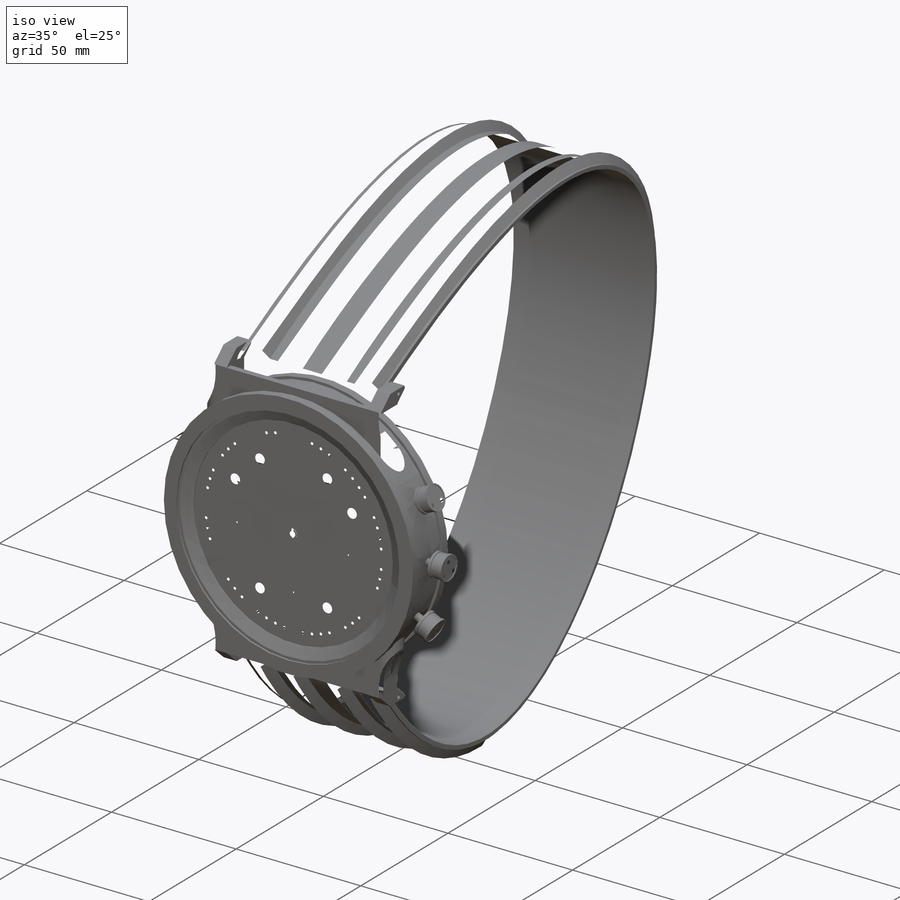
[diagram: iso view]
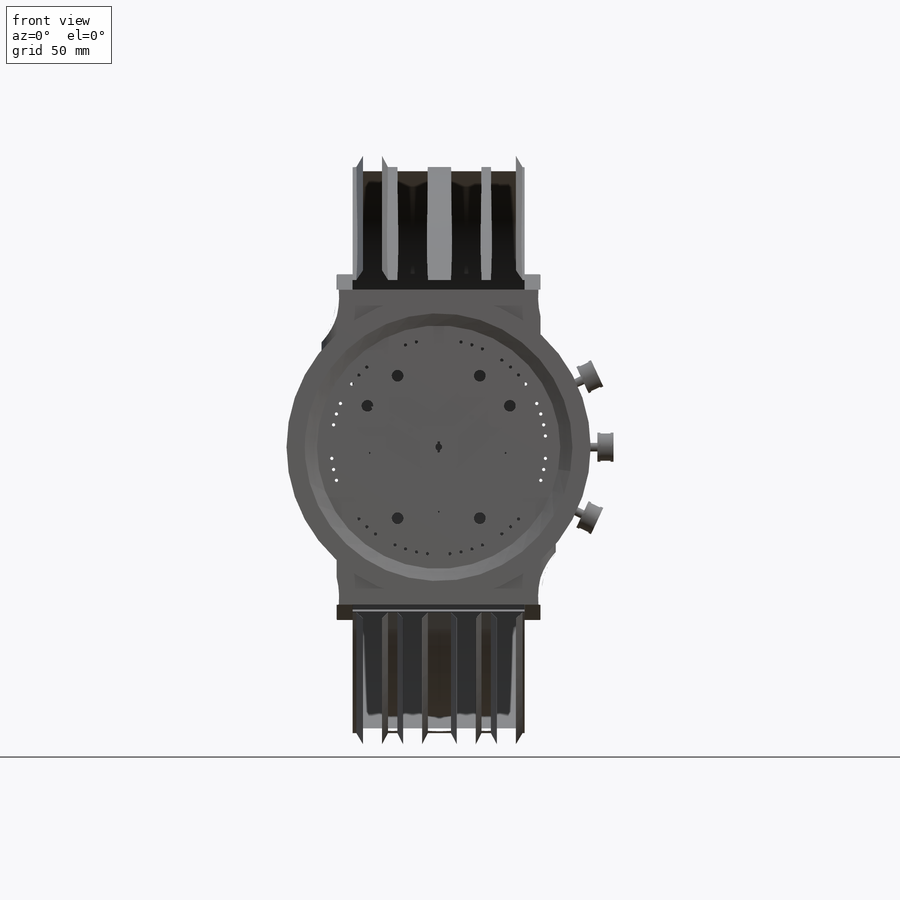
[diagram: front view]
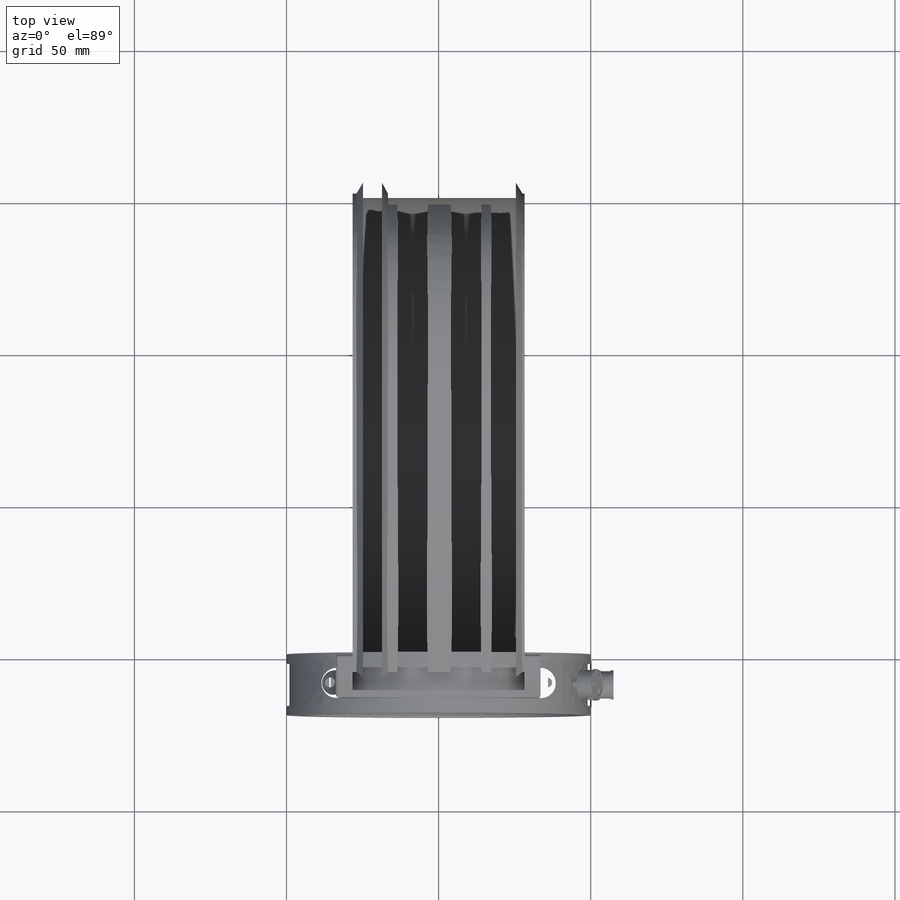
[diagram: top view]
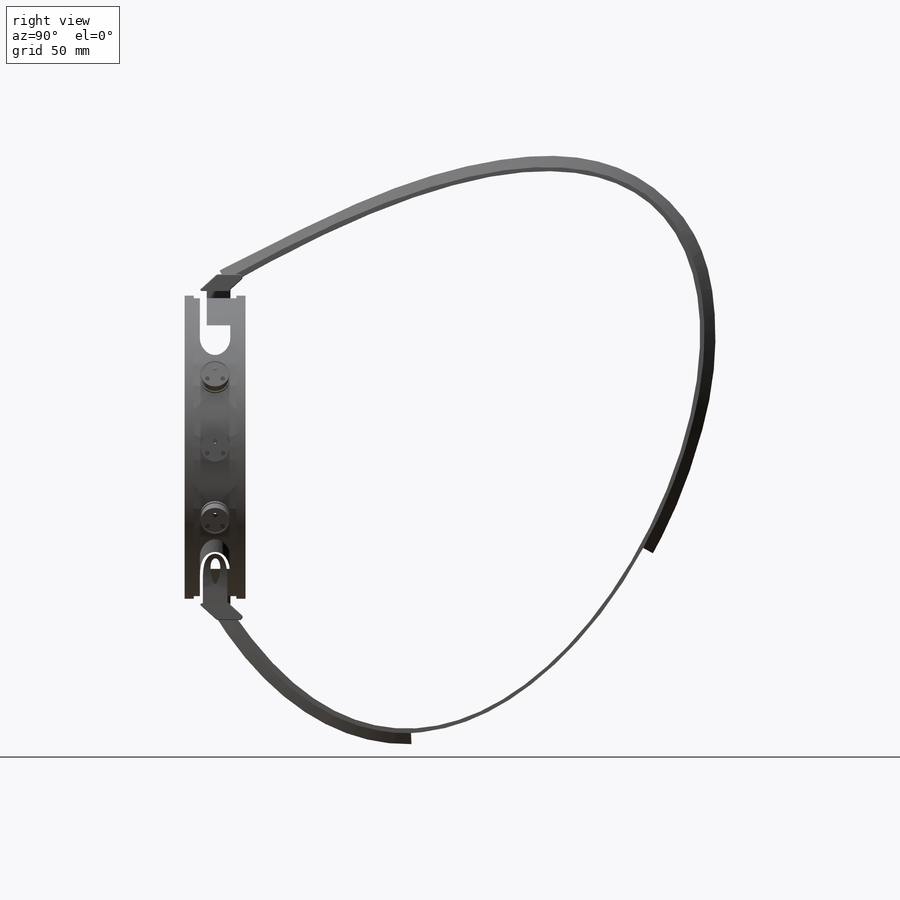
[diagram: right view]
SOLIDWORKS PART (.sldprt)
format: sldprt  version: not decoded by parser v0  size: 4,101,632 bytes
history: native  units: mm
features: sketch x65, extrude x22, cut_extrude x18, curve x15, plane x5, mirror x4, fillet x4, pattern_circular x2, sweep x2, material x1, dome x1 (+11 scaffold rows collapsed)
feature tree (150):
  scaffold x11  (default folders/planes/origin — collapsed)
  material  "Material <not specified>"
  sketch  "Sketch1"  dims[D1=~46.962406mm]
  extrude  "Boss-Extrude1"  Depth=20mm
  plane  "Plane1"  Offset=10mm
  sketch  "Sketch2"  dims[D1=48.0mm]
  cut_extrude  "Cut-Extrude2"  Depth=7mm
  sketch  "Sketch3"  dims[D1=40.0mm]
  cut_extrude  "Cut-Extrude3"  Depth=0.7mm
  sketch  "Sketch4"  dims[D1=~43.65921mm]
  plane  "Plane2"  Offset=2mm
  sketch  "Sketch5"  dims[D1=~39.780601mm]
  sketch  "Sketch6"
  cut_extrude  "Cut-Extrude4"  Depth=0.3mm
  sketch  "Sketch7"
  plane  "Plane3"
  sketch  "Sketch8"
  extrude  "Boss-Extrude2"  Depth=5.3mm
  sketch  "Sketch9"
  extrude  "Boss-Extrude3"  Depth=5.3mm
  sketch  "Sketch11"
  cut_extrude  "Cut-Extrude6"  Depth=3.3mm
  sketch  "Sketch15"
  pattern_circular  "CirPattern1"  Count=2 Angle=25deg
  pattern_circular  "CirPattern2"  Count=2 Angle=335deg
  sketch  "Sketch16"  dims[D1=16.0mm]
  extrude  "Boss-Extrude4"  Depth=5mm
  sketch  "Sketch17"
  cut_extrude  "Cut-Extrude9"  [1 undecoded]
  mirror  "Mirror10"
  sketch  "Sketch18"  dims[D1=1.0mm]
  extrude  "Boss-Extrude5"  [1 undecoded]
  sketch  "Sketch19"  dims[D1=1.0mm]
  extrude  "Boss-Extrude6"  [1 undecoded]
  mirror  "Mirror17"
  sketch  "Sketch20"
  cut_extrude  "Cut-Extrude10"  Depth=73.3mm
  sketch  "Sketch21"  dims[D1=~1.79845mm]
  cut_extrude  "Cut-Extrude11"  Depth=73.3mm
  sketch  "Sketch22"
  cut_extrude  "Cut-Extrude12"  Depth=0.3mm
  sketch  "Sketch23"  dims[D1=~4.774478mm]
  cut_extrude  "Cut-Extrude13"  Depth=0.3mm
  sketch  "Sketch24"  dims[D1=~3.732495mm]
  cut_extrude  "Cut-Extrude14"  Depth=0.3mm
  fillet  "Fillet8"  Radius=0.3mm
  fillet  "Fillet9"  Radius=0.3mm
  fillet  "Fillet10"  Radius=0.3mm
  fillet  "Fillet11"  Radius=0.3mm
  plane  "Plane4"
  sketch  "Sketch25"  dims[D1=2.0mm]
  extrude  "Boss-Extrude9"  [1 undecoded]
  plane  "Plane5"
  sketch  "Sketch28"  dims[D1=6.0mm]
  sketch  "Sketch29"
  sweep  "Sweep3"
  sketch  "Sketch30"  dims[D1=2.0mm]
  extrude  "Boss-Extrude10"  Depth=0.3mm
  dome  "Dome1"
  sketch  "Sketch31"  dims[D1=2.0mm]
  extrude  "Boss-Extrude11"  Depth=0.3mm
  sketch  "Sketch32"  dims[D1=2.0mm]
  extrude  "Boss-Extrude12"  Depth=0.3mm
  sketch  "Sketch33"  dims[c1.D3=~5.983844mm c1.D1=~32.430739mm c2.D1=120.0deg c2.D2=~64.154635mm c3.D2=120.0deg]
  sketch  "Sketch35"  dims[D1=0.4mm D2=0.4mm]
  curve  "Split Line4"
  sketch  "Sketch36"  dims[D1=0.4mm]
  curve  "Split Line6"
  sketch  "Sketch38"  dims[D1=0.4mm]
  curve  "Split Line7"
  sketch  "Sketch39"
  extrude  "Boss-Extrude13"  Depth=0.5mm
  sketch  "Sketch40"
  extrude  "Boss-Extrude14"  Depth=0.3mm
  sketch  "Sketch41"  dims[D1=33.0mm]
  extrude  "Boss-Extrude16"  Depth=0.08mm
  sketch  "Sketch42"  dims[D2=0.7mm D1=3.0]
  cut_extrude  "Cut-Extrude15"  Depth=0.08mm
  sketch  "Sketch43"  dims[c1.D1=~37.582186mm c2.D1=60.0deg]
  extrude  "Boss-Extrude17"  Depth=0.08mm
  sketch  "Sketch44"
  cut_extrude  "Cut-Extrude16"  Depth=0.08mm
  sketch  "Sketch45"  dims[c1.D1=36.0mm c2.D1=90.0deg c3.D1=0.4mm c3.D2=0.4mm]
  extrude  "Boss-Extrude18"  Depth=0.08mm
  sketch  "Sketch46"
  cut_extrude  "Cut-Extrude17"  Depth=0.08mm
  sketch  "Sketch47"
  cut_extrude  "Cut-Extrude18"  Depth=0.04mm
  sketch  "Sketch48"
  cut_extrude  "Cut-Extrude20"  Depth=0.04mm
  sketch  "Sketch50"
  curve  "Split Line8"
  sketch  "Sketch51"  dims[c1.D1=0.1mm c1.D2=0.1mm c2.D1=12.0]
  curve  "Split Line9"
  sketch  "Sketch52"  dims[c1.D1=0.1mm c1.D2=0.1mm c2.D1=0.1mm c2.D2=0.1mm c3.D1=0.1mm c3.D2=0.1mm c3.D3=0.1mm c4.D2=0.1mm c4.D3=0.1mm]
  curve  "Split Line10"
  sketch  "Sketch53"  dims[c1.D2=~3.821243mm c2.D2=12.0deg c2.D1=0.1mm c3.D2=0.05mm c3.D3=0.05mm c3.D1=6.0]
  curve  "Split Line11"
  sketch  "Sketch54"  dims[c1.D1=0.1mm c1.D2=0.1mm c2.D1=12.0]
  curve  "Split Line12"
  sketch  "Sketch55"  dims[D1=0.05mm D2=0.05mm]
  curve  "Split Line13"
  sketch  "Sketch56"  dims[c1.D1=0.05mm c1.D2=0.05mm c2.D1=0.05mm c2.D2=0.05mm]
  curve  "Split Line15"
  sketch  "Sketch57"  dims[c1.D1=0.05mm c1.D2=0.05mm c1.D3=0.05mm c1.D4=0.05mm c2.D1=0.05mm c2.D2=0.05mm c3.D1=0.05mm c3.D2=0.05mm]
  curve  "Split Line17"
  sketch  "Sketch58"  dims[D1=~0.193533mm]
  extrude  "Boss-Extrude20"  Depth=0.9mm
  sketch  "Sketch59"  dims[c1.D1=0.9mm c2.D1=90.0deg c3.D1=4.3mm]
  extrude  "Boss-Extrude22"  Depth=0.2mm
  sketch  "Sketch61"  dims[c1.D1=~14.702471mm c2.D1=30.0deg c3.D1=~3.097938mm c4.D1=30.0deg c5.D1=3.2mm c5.D3=0.08mm c5.D4=0.08mm c6.D3=0.2mm c6.D4=0.2mm c7.D3=0.2mm c7.D4=0.2mm c8.D3=0.2mm c8.D4=0.2mm c8.D5=0.2mm c8.D6=0.2mm c9.D3=0.2mm c9.D4=0.2mm c10.D3=0.2mm c10.D4=0.2mm c10.D5=0.2mm c10.D1=0.2mm c10.D2=0.2mm c11.D1=0.2mm c11.D2=0.2mm c12.D1=0.2mm c12.D2=0.2mm c13.D1=0.2mm c13.D2=0.2mm]
  sketch  "Sketch49"  dims[D1=~0.528875mm]
  extrude  "Boss-Extrude19"  Depth=0.1mm
  curve  "Split Line18"
  sketch  "Sketch62"
  extrude  "Boss-Extrude23"  Depth=0.2mm
  sketch  "Sketch63"
  sketch  "Sketch64"
  curve  "Split Line19"
  sketch  "Sketch65"
  curve  "Split Line21"
  sketch  "Sketch67"
  curve  "Split Line22"
  sketch  "Sketch69"  dims[D1=5.0mm]
  extrude  "Boss-Extrude24"  Depth=21mm
  sketch  "Sketch70"
  cut_extrude  "Cut-Extrude21"  Depth=21mm
  sketch  "Sketch71"
  cut_extrude  "Cut-Extrude22"  Depth=23mm
  sketch  "Sketch72"  dims[D1=1.6079mm]
  extrude  "Boss-Extrude27"  Depth=2.5mm
  sketch  "Sketch74"
  extrude  "Boss-Extrude28"  Depth=2mm
  sketch  "Sketch75"  dims[D1=0.25mm D2=0.25mm]
  cut_extrude  "Cut-Extrude23"  Depth=0.1mm
  mirror  "Mirror18"
  mirror  "Mirror19"
  sketch  "Sketch77"
  sketch  "Sketch78"
  sweep  "Sweep4"
decode coverage: 80 of 133 modeling features carry decoded parameters
note: ~ marks probable driven/reference dimensions
note: 4 parameter values undecoded
summary: no parameter record found for 4 features
note: suppression state not decoded; provenance and decode notes live in map.json
